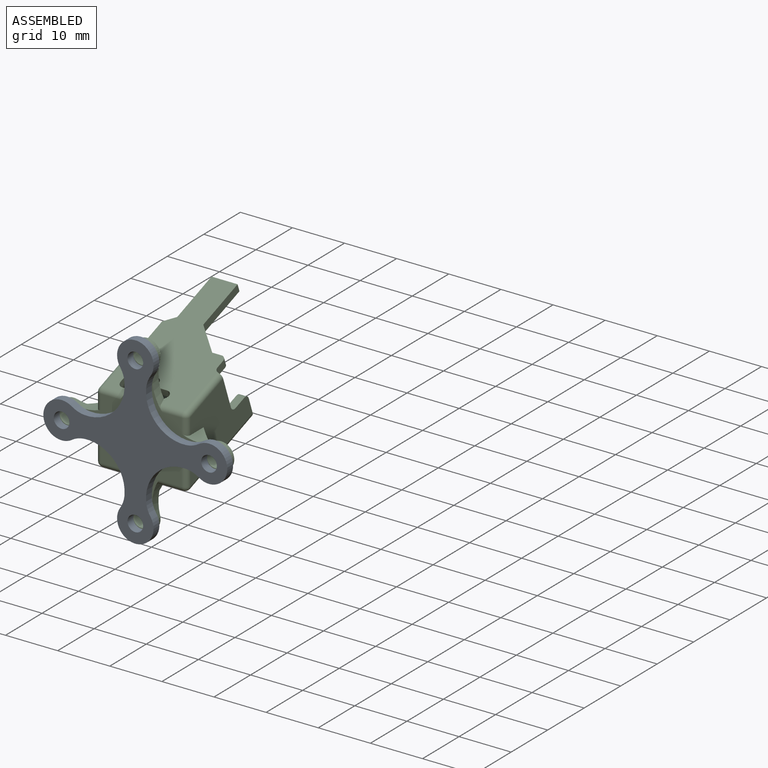
[diagram: assembled view]
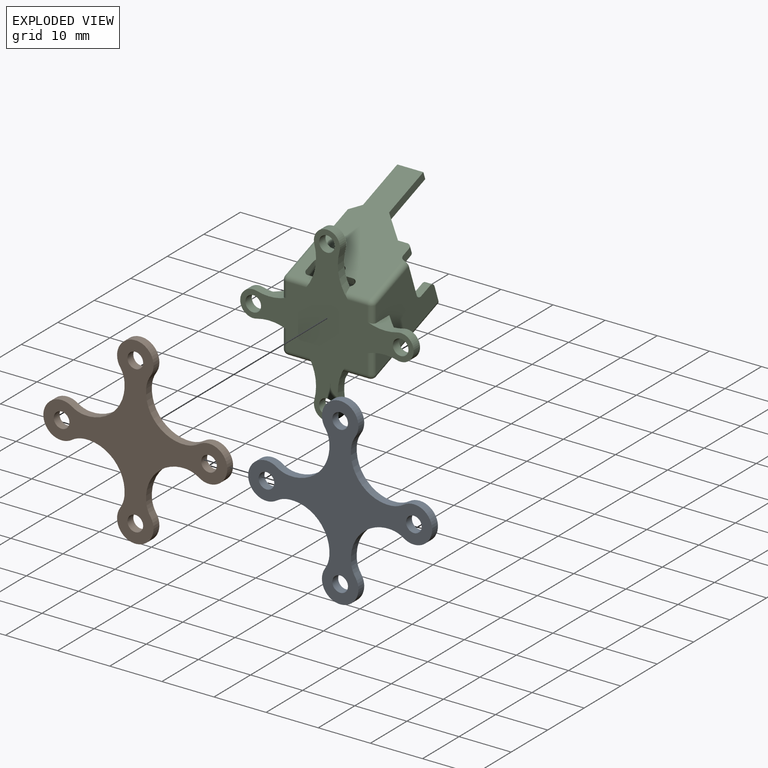
[diagram: exploded view]
GUIDED TOUR — MATED ASSEMBLY (Onshape document 986b733617c22f65d2ac8275, AutoMate assembly 986b733617c22f65d2ac8275_586e0a0937de548e0f4fd221_1410dc4d3b7e20a94516224b_default)

This assembly has 3 components, labeled P0..P2 below (a component is one placed occurrence of a part; the same part can appear more than once), held together by 1 mate. A mate is a constraint between two components; its type names the relative motion it leaves free:
  FASTENED — locks the two components together rigidly (no relative motion).
Axis/direction vectors are unit vectors and 'through' points are millimeter coordinates, both in the assembly's world frame.

MATES
  1. FASTENED "Fastened 1": P2 <-> P1, direction (0.000, -1.000, 0.000) through (-1.76, -0.33, -0.18) mm

ASSEMBLY ORDER
  1. P1 — the base component [order heuristic]
  2. P0 — core [order heuristic]
  3. P2 [order verified]
Order-tag legend:
  [order verified] — this step's position reverses a verified removal order: the component was checked to insert without passing through the ones already placed.
  [order heuristic] — the first 2 components form the assembly's core: parts whose collision-free extraction could not be verified, listed in mate-graph order.

Of the 3 components, 2 carry the full construction recipe — the FeatureScript program that regenerates the part's solid from scratch; the rest are supplied as boundary geometry only.
Each toured component is shown spotlighted twice — in the assembled view, then in the exploded view, where a leader line traces a displaced component back to its assembled socket (saturated green if recipe-attached, orange if geometry-only; every other component desaturated gray) — followed by its recipe or geometry summary and the mates that hold it.
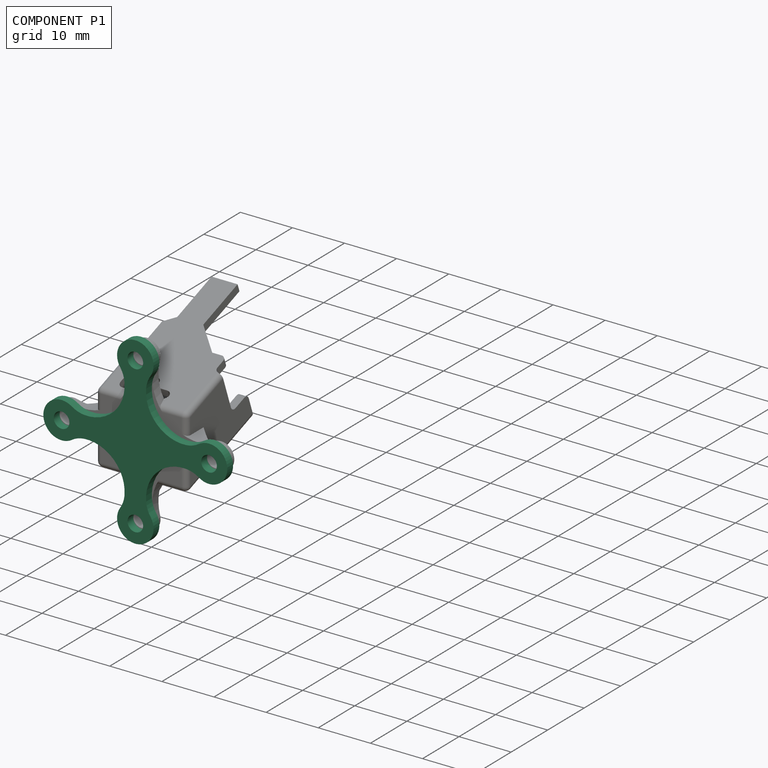
[diagram: component P1 — assembled]
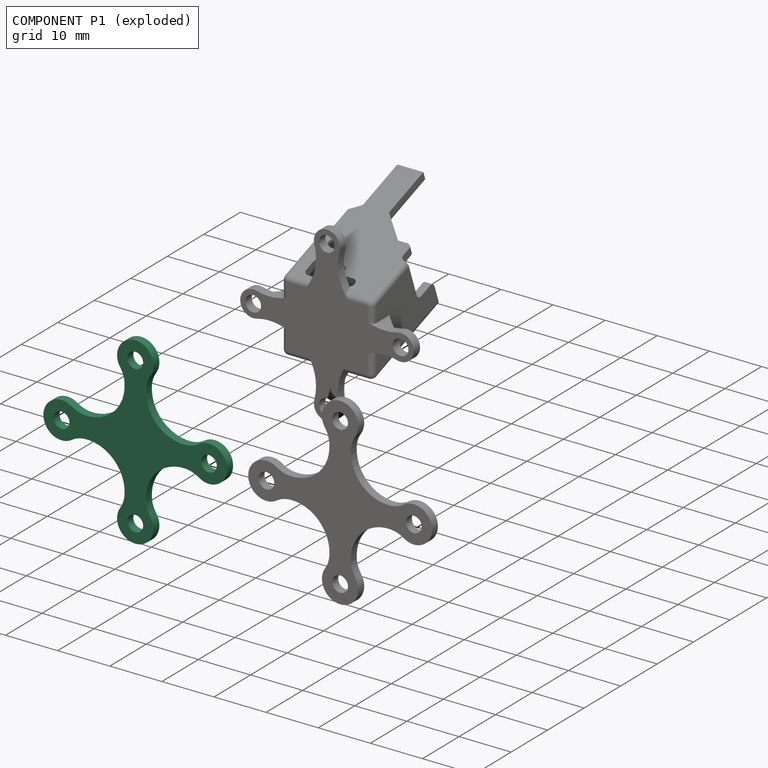
[diagram: component P1 — exploded]
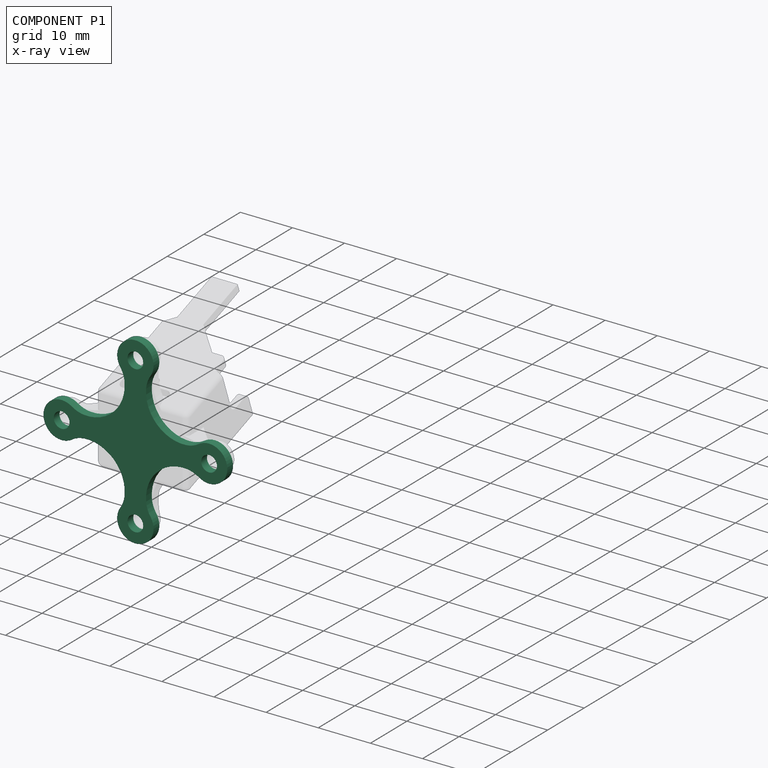
[diagram: component P1 — x-ray view]
COMPONENT P1 — same part as P0 (CADFS 00797166); its construction recipe is shown at P0.
Held by: FASTENED mate "Fastened 1" to P2.
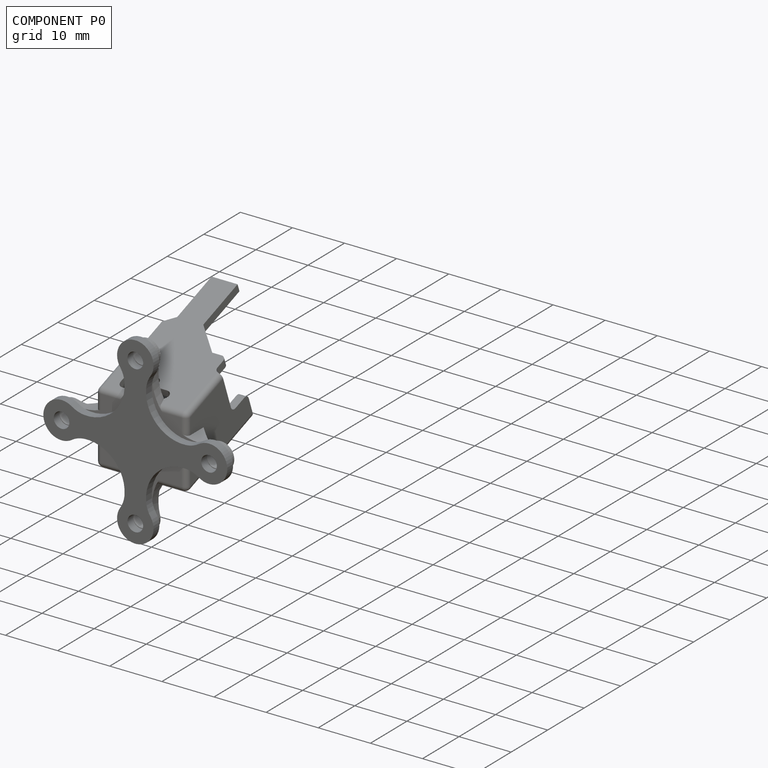
[diagram: component P0 — assembled]
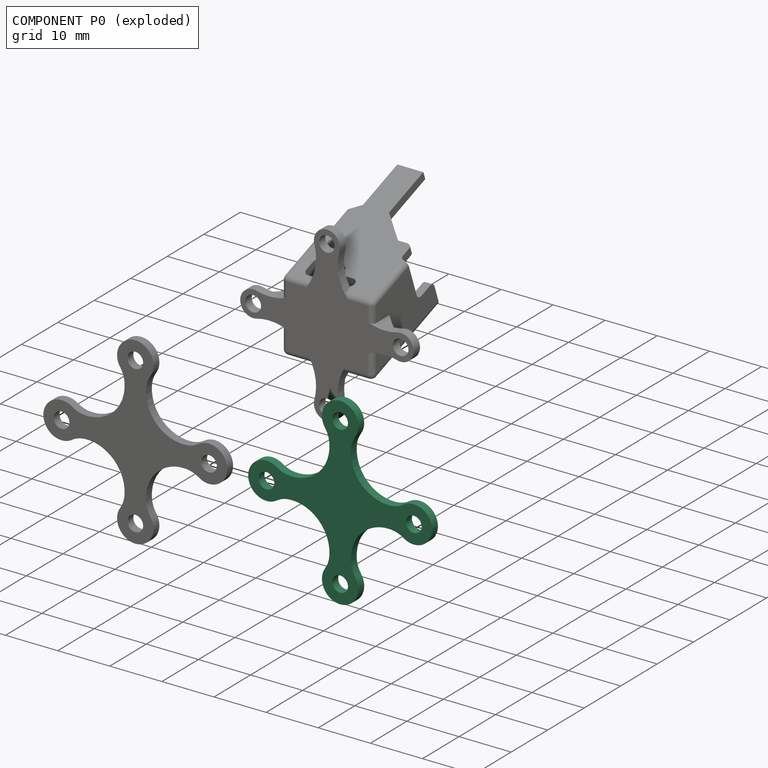
[diagram: component P0 — exploded]
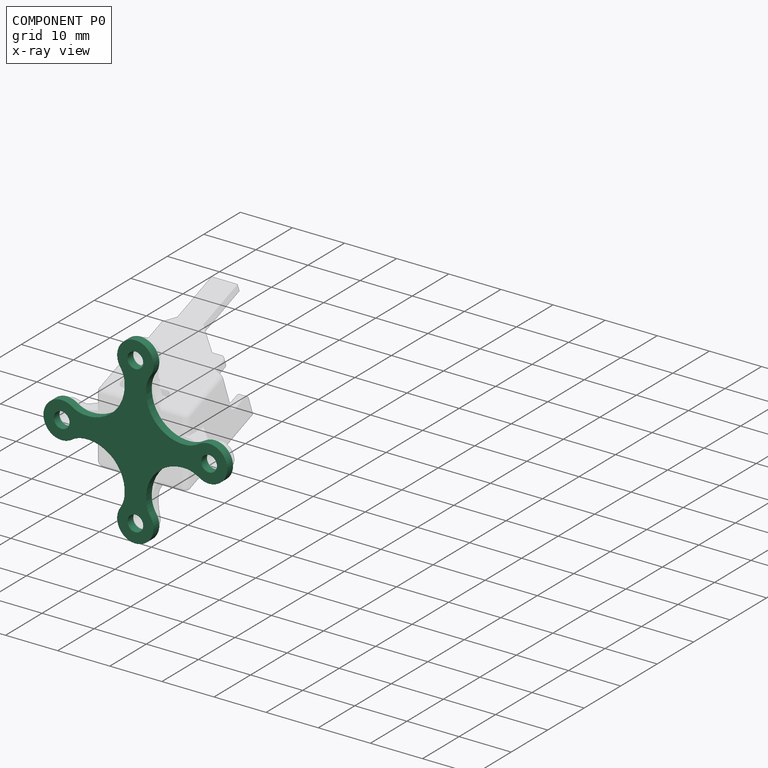
[diagram: component P0 — x-ray view]
COMPONENT P0 — recipe-attached (CADFS 00797166, mesh-verified: the recipe's output STEP matches this component's geometry to below the mesh-comparison resolution (tessellation chordal tolerance ~0.0748 mm)).
Held by: no mates (free).
Construction recipe (FeatureScript — the CAD program that rebuilds this solid; sketch coordinates are in the units given by the * unit suffixes, e.g. mm):

FeatureScript 1511;
import(path : "onshape/std/geometry.fs", version : "1511.0");
import(path : "onshape/std/common.fs", version : "1511.0");
const mm = millimeter;
const VERTEX = EntityType.VERTEX;
const EDGE = EntityType.EDGE;
const FACE = EntityType.FACE;
const BODY = EntityType.BODY;
function v(x, y){return vector(x, y);}
function OD(order){return orderDisambiguation(order);}
function OSD(set){return originalSetDisambiguation(set);}
function TD(topology){return topologyDisambiguation(topology);}
function TDD(query){return trueDependencyDisambiguation(query);}
function sQuery(a, b, c) {return sketchEntityQuery(a, b, c);}

annotation { "Feature Type Name" : "Feature", "Feature Type Description" : "" }
export const myFeature = defineFeature(function(context is Context, id is Id, definition is map)
    precondition{}
    {
        {
            var Q0;
            Q0=qCreatedBy(makeId("Front.planeOp"),FACE);
            var sketch = newSketch(context, id + "F0", { "sketchPlane" : qUnion([Q0])});
            skPoint(sketch, "E0.middle", {"position": v(0, 0) * mm});
            skCircle(sketch, "E1", {"center": v(0, 14.14) * mm, "radius": 1.5 * mm});
            skCircle(sketch, "E2", {"center": v(14.14, 0) * mm, "radius": 1.5 * mm});
            skCircle(sketch, "E3", {"center": v(0, -14.14) * mm, "radius": 1.5 * mm});
            skCircle(sketch, "E4", {"center": v(-14.14, 0) * mm, "radius": 1.5 * mm});
            skArc(sketch, "E5.0", {"start": v(-12.19, 2.9) * mm, "mid": v(-17.64, 0) * mm, "end": v(-12.19, -2.9) * mm});
            skArc(sketch, "E6.0", {"start": v(2.9, 12.19) * mm, "mid": v(0, 17.64) * mm, "end": v(-2.9, 12.19) * mm});
            skArc(sketch, "E7.0", {"start": v(-2.9, -12.19) * mm, "mid": v(0, -17.64) * mm, "end": v(2.9, -12.19) * mm});
            skArc(sketch, "E8.0", {"start": v(12.19, -2.9) * mm, "mid": v(17.64, 0) * mm, "end": v(12.19, 2.9) * mm});
            skArc(sketch, "E9", {"start": v(-2.07, -9.8) * mm, "mid": v(-4.15, -4.15) * mm, "end": v(-9.8, -2.07) * mm});
            skArc(sketch, "E10.MirrorCS", {"start": v(-2.07, 9.8) * mm, "mid": v(-4.15, 4.15) * mm, "end": v(-9.8, 2.07) * mm});
            skArc(sketch, "E11.MirrorCS", {"start": v(2.07, 9.8) * mm, "mid": v(4.15, 4.15) * mm, "end": v(9.8, 2.07) * mm});
            skArc(sketch, "E12.MirrorCS", {"start": v(2.07, -9.8) * mm, "mid": v(4.15, -4.15) * mm, "end": v(9.8, -2.07) * mm});
            skPoint(sketch, "E13.visualSharp", {"position": v(-2.47, -11.67) * mm});
            skArc(sketch, "E13.filletArc", {"start": v(-2.9, -12.19) * mm, "mid": v(-2.33, -11.05) * mm, "end": v(-2.07, -9.8) * mm});
            skPoint(sketch, "E14.visualSharp", {"position": v(2.47, -11.67) * mm});
            skArc(sketch, "E14.filletArc", {"start": v(2.07, -9.8) * mm, "mid": v(2.33, -11.05) * mm, "end": v(2.9, -12.19) * mm});
            skPoint(sketch, "E15.visualSharp", {"position": v(-11.67, -2.47) * mm});
            skArc(sketch, "E15.filletArc", {"start": v(-9.8, -2.07) * mm, "mid": v(-11.05, -2.33) * mm, "end": v(-12.19, -2.9) * mm});
            skPoint(sketch, "E16.visualSharp", {"position": v(-11.67, 2.47) * mm});
            skArc(sketch, "E16.filletArc", {"start": v(-12.19, 2.9) * mm, "mid": v(-11.05, 2.33) * mm, "end": v(-9.8, 2.07) * mm});
            skPoint(sketch, "E17.visualSharp", {"position": v(-2.47, 11.67) * mm});
            skArc(sketch, "E17.filletArc", {"start": v(-2.07, 9.8) * mm, "mid": v(-2.33, 11.05) * mm, "end": v(-2.9, 12.19) * mm});
            skPoint(sketch, "E18.visualSharp", {"position": v(2.47, 11.67) * mm});
            skArc(sketch, "E18.filletArc", {"start": v(2.9, 12.19) * mm, "mid": v(2.33, 11.05) * mm, "end": v(2.07, 9.8) * mm});
            skPoint(sketch, "E19.visualSharp", {"position": v(11.67, -2.47) * mm});
            skArc(sketch, "E19.filletArc", {"start": v(12.19, -2.9) * mm, "mid": v(11.05, -2.33) * mm, "end": v(9.8, -2.07) * mm});
            skPoint(sketch, "E20.visualSharp", {"position": v(11.67, 2.47) * mm});
            skArc(sketch, "E20.filletArc", {"start": v(9.8, 2.07) * mm, "mid": v(11.05, 2.33) * mm, "end": v(12.19, 2.9) * mm});
            skSolve(sketch);
        }
        {
            var Q0;
            Q0=makeQuery(id+"F0.imprint","IMPRINT",FACE,{"disambiguationData":[TD([[makeQuery(id+"F0.imprint","IMPRINT",EDGE,{"derivedFrom":sQuery(id+"F0.wireOp",EDGE,"E1")}),-1.0]])]});
            extrude(context, id + "F1", {"entities" : qUnion([Q0]), "depth" : 1.6 * mm, "offsetDistance" : 25 * mm});
        }
    });
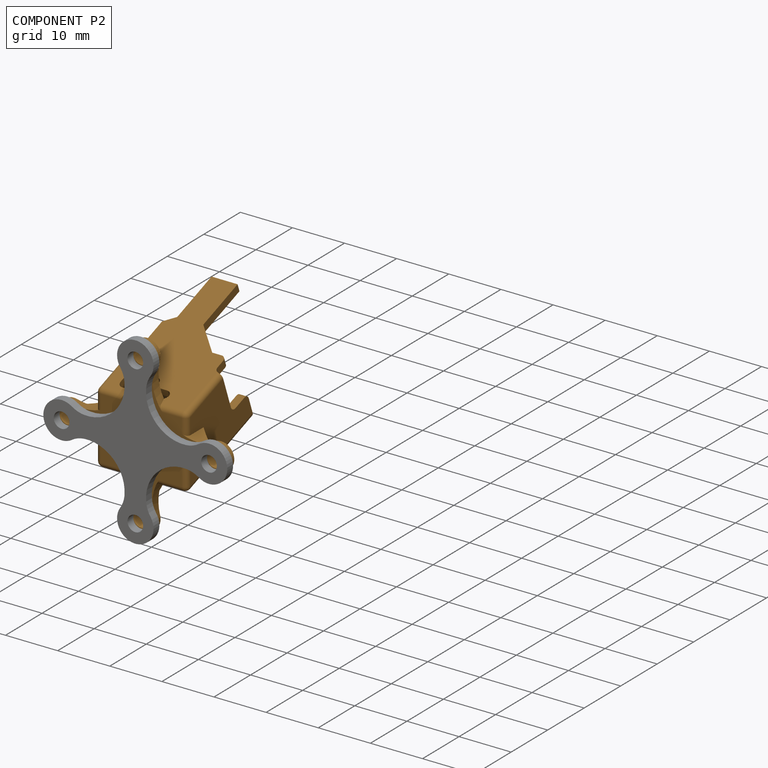
[diagram: component P2 — assembled]
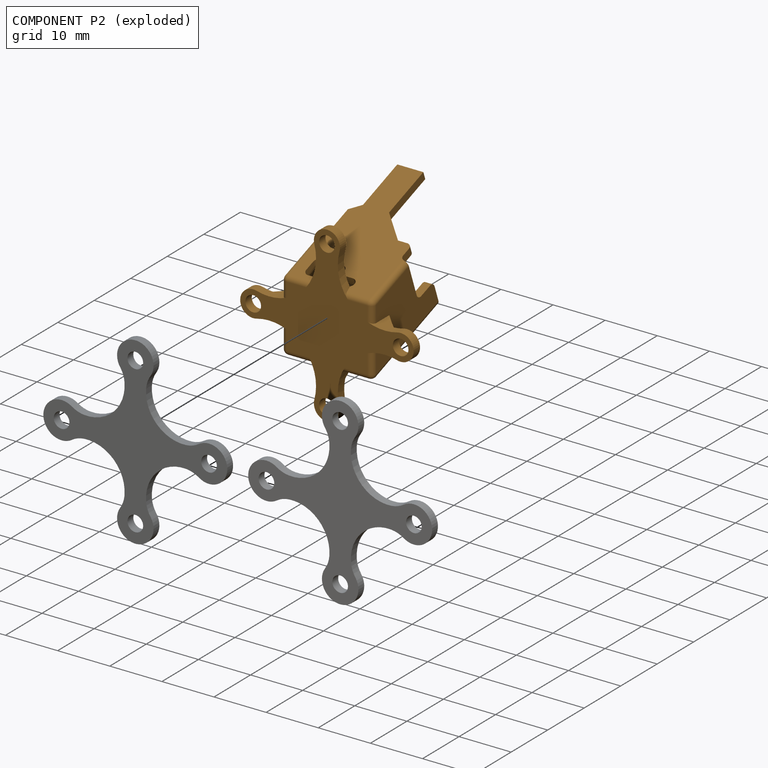
[diagram: component P2 — exploded]
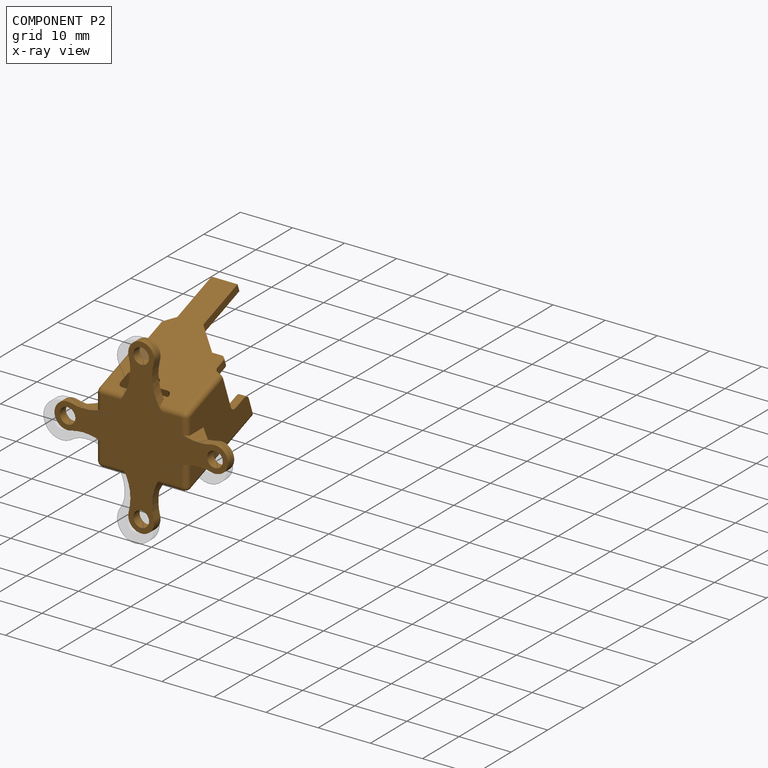
[diagram: component P2 — x-ray view]
COMPONENT P2 — geometry summary (no construction recipe available for this part):
  bounding box: 36.7 x 33.3 x 31.9 mm
  B-rep topology: 1 solid, 84 faces, 478 edges
  volume: 2141 mm^3 (5% of its bounding box)
Held by: FASTENED mate "Fastened 1" to P1.
PROVENANCE & LICENSES
Assembly (occurrences, transforms, mates, per-part STEP geometry): AutoMate dataset, Zenodo record 7776208, CC0.
Construction recipes: CADFS (HuggingFace VladPyatov/CADFS, CC-BY-4.0, layered over the ABC dataset), FeatureScript reconstruction programs keyed by ABC model id.
Join: ABC meta listings map ABC model id -> Onshape documentId; within a shared document, parts are matched by geometric signature (bounding-box dims + volume at 0.1% relative tolerance, exact B-rep face/solid counts).
Verification: 2 of this assembly's 3 components carry a recipe attachment, and every attachment is mesh-verified: the CADFS STEP and the AutoMate member STEP were compared as meshes in their shared local frame (symmetric sampled-point-to-mesh distance); worst across the 2 attachments: below the mesh-comparison resolution (tessellation chordal tolerance ~0.0748 mm) on a 50 mm part.
Renders: orthographic iso camera (az 35 / el 25); the floor grid conveys scale (grid pitch printed in each image; no ruler). In the exploded view each component is displaced by its stored offset vector: the offsets alone carry the explosion direction (mate normal/axis signs are not orientation cues and do not encode it), and separation distances are assigned per mate-chain, not proportionally to assembly-order depth.
